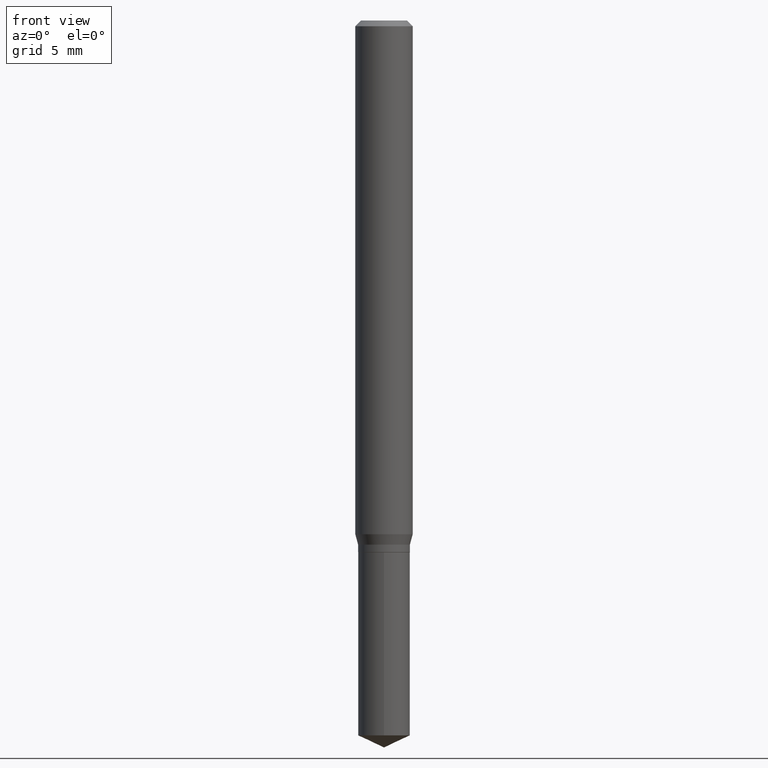
[diagram: clean part render]
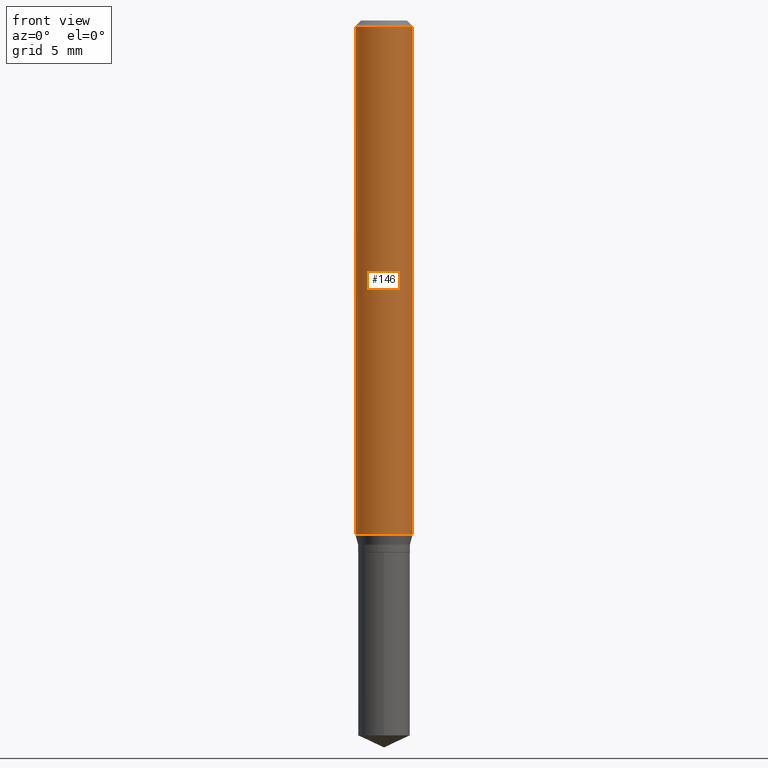
[diagram: same view with one face highlighted and labeled with its STEP entity id]
A machine part, front view. The second image highlights one B-rep face of the part: STEP entity #146.
In plain terms, the highlighted cylindrical surface (edge-blend (fillet) strip) has radius 1.4999 mm, axis along (-0, 0, 1).
Its self-contained STEP definition (entity closure, byte-faithful):
#2 = EDGE_CURVE ( 'NONE', #93, #392, #249, .T. ) ;
#8 = VERTEX_POINT ( 'NONE', #19 ) ;
#15 = DIRECTION ( 'NONE',  ( -2.445468806185136597E-29, 3.491481338843145583E-15, 1.000000000000000000 ) ) ;
#19 = CARTESIAN_POINT ( 'NONE',  ( 0.05904999999999999832, -4.535783407291118600E-16, -0.01181000000000007044 ) ) ;
#31 = EDGE_CURVE ( 'NONE', #309, #8, #343, .T. ) ;
#32 = CYLINDRICAL_SURFACE ( 'NONE', #279, 0.05905000000000006771 ) ;
#42 = CARTESIAN_POINT ( 'NONE',  ( -0.05904999999999999832, -1.446686424422506583E-15, -0.01181000000000007044 ) ) ;
#61 = ORIENTED_EDGE ( 'NONE', *, *, #196, .F. ) ;
#63 = AXIS2_PLACEMENT_3D ( 'NONE', #391, #461, #312 ) ;
#93 = VERTEX_POINT ( 'NONE', #323 ) ;
#146 = ADVANCED_FACE ( 'NONE', ( #326 ), #32, .T. ) ;
#158 = VECTOR ( 'NONE', #428, 39.37007874015748143 ) ;
#180 = AXIS2_PLACEMENT_3D ( 'NONE', #268, #15, #385 ) ;
#182 = CARTESIAN_POINT ( 'NONE',  ( -0.05905000000000006771, 4.195754854663396409E-16, -2.904631170795525045E-30 ) ) ;
#196 = EDGE_CURVE ( 'NONE', #93, #309, #395, .T. ) ;
#198 = EDGE_LOOP ( 'NONE', ( #61, #402, #232, #269 ) ) ;
#223 = LINE ( 'NONE', #345, #158 ) ;
#232 = ORIENTED_EDGE ( 'NONE', *, *, #400, .T. ) ;
#249 = CIRCLE ( 'NONE', #180, 0.05905000000000013016 ) ;
#268 = CARTESIAN_POINT ( 'NONE',  ( 2.585416408622524463E-29, -3.691289425165956001E-15, -1.057227310396857023 ) ) ;
#269 = ORIENTED_EDGE ( 'NONE', *, *, #31, .F. ) ;
#276 = CARTESIAN_POINT ( 'NONE',  ( 0.05905000000000013016, -4.103633371283330921E-15, -1.057227310396857023 ) ) ;
#279 = AXIS2_PLACEMENT_3D ( 'NONE', #476, #474, #363 ) ;
#296 = DIRECTION ( 'NONE',  ( -2.445468806185136877E-29, 3.491481338843145188E-15, 1.000000000000000000 ) ) ;
#309 = VERTEX_POINT ( 'NONE', #42 ) ;
#312 = DIRECTION ( 'NONE',  ( 1.000000000000000000, -6.982962677686266711E-15, 0.000000000000000000 ) ) ;
#323 = CARTESIAN_POINT ( 'NONE',  ( -0.05905000000000013016, -3.271713939699615719E-15, -1.057227310396857023 ) ) ;
#326 = FACE_OUTER_BOUND ( 'NONE', #198, .T. ) ;
#343 = CIRCLE ( 'NONE', #63, 0.05904999999999999832 ) ;
#345 = CARTESIAN_POINT ( 'NONE',  ( 0.05905000000000006771, -4.123439461173745257E-16, 2.879382386107503723E-30 ) ) ;
#363 = DIRECTION ( 'NONE',  ( 1.000000000000000000, -6.982962677686266711E-15, 4.876176775795936353E-29 ) ) ;
#385 = DIRECTION ( 'NONE',  ( 1.000000000000000000, -6.982962677686265133E-15, 0.000000000000000000 ) ) ;
#391 = CARTESIAN_POINT ( 'NONE',  ( 2.888098660104663766E-31, -4.123439461173779647E-17, -0.01181000000000007044 ) ) ;
#392 = VERTEX_POINT ( 'NONE', #276 ) ;
#395 = LINE ( 'NONE', #182, #471 ) ;
#400 = EDGE_CURVE ( 'NONE', #392, #8, #223, .T. ) ;
#402 = ORIENTED_EDGE ( 'NONE', *, *, #2, .T. ) ;
#428 = DIRECTION ( 'NONE',  ( -2.445468806185136877E-29, 3.491481338843145188E-15, 1.000000000000000000 ) ) ;
#461 = DIRECTION ( 'NONE',  ( -2.445468806185136597E-29, 3.491481338843145583E-15, 1.000000000000000000 ) ) ;
#471 = VECTOR ( 'NONE', #296, 39.37007874015748143 ) ;
#474 = DIRECTION ( 'NONE',  ( -2.445468806185136597E-29, 3.491481338843145583E-15, 1.000000000000000000 ) ) ;
#476 = CARTESIAN_POINT ( 'NONE',  ( 0.000000000000000000, 0.000000000000000000, 0.000000000000000000 ) ) ;